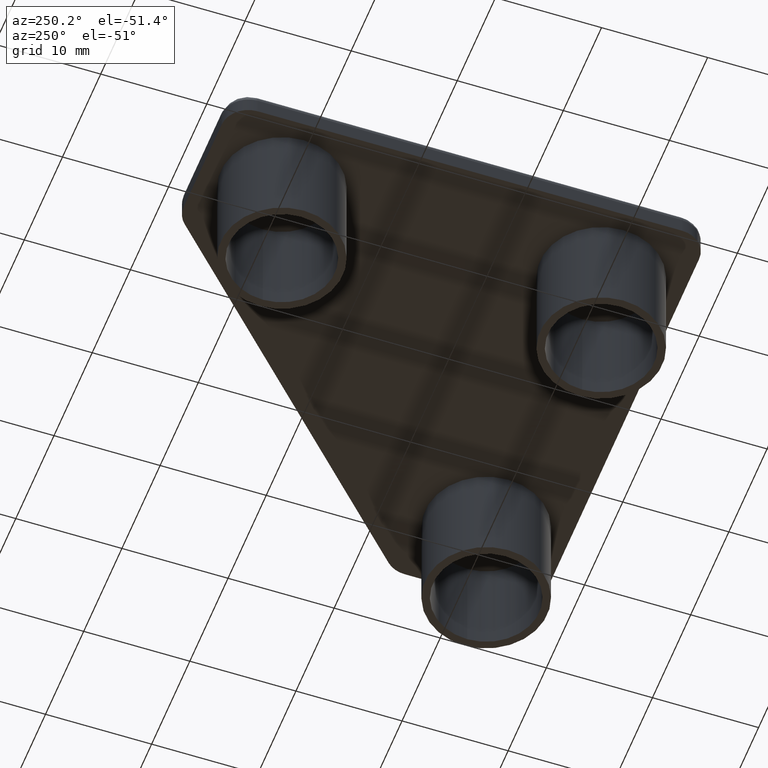
[diagram: clean part render]
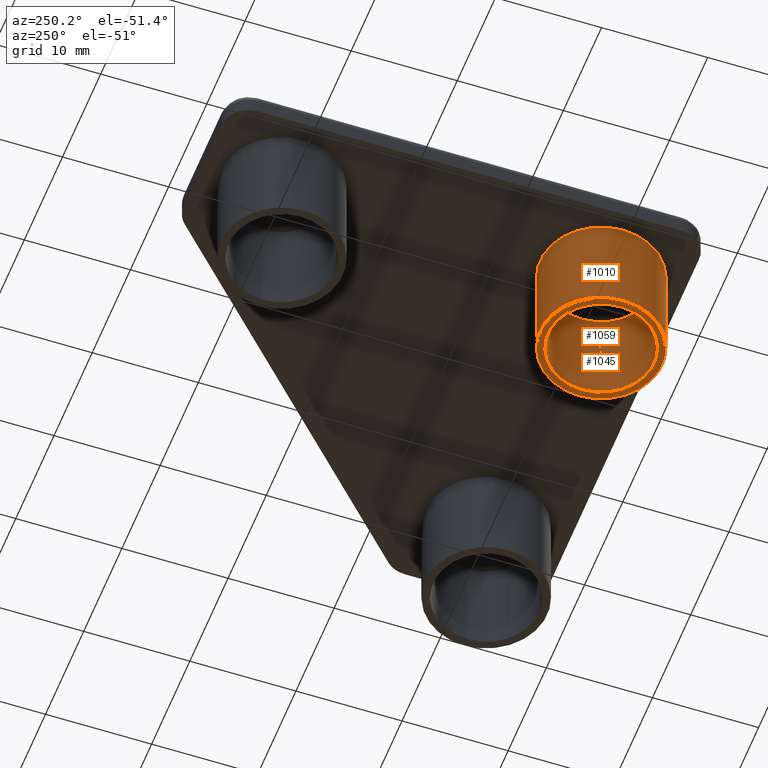
[diagram: same view with one multi-face feature highlighted, each face labeled with its STEP entity id]
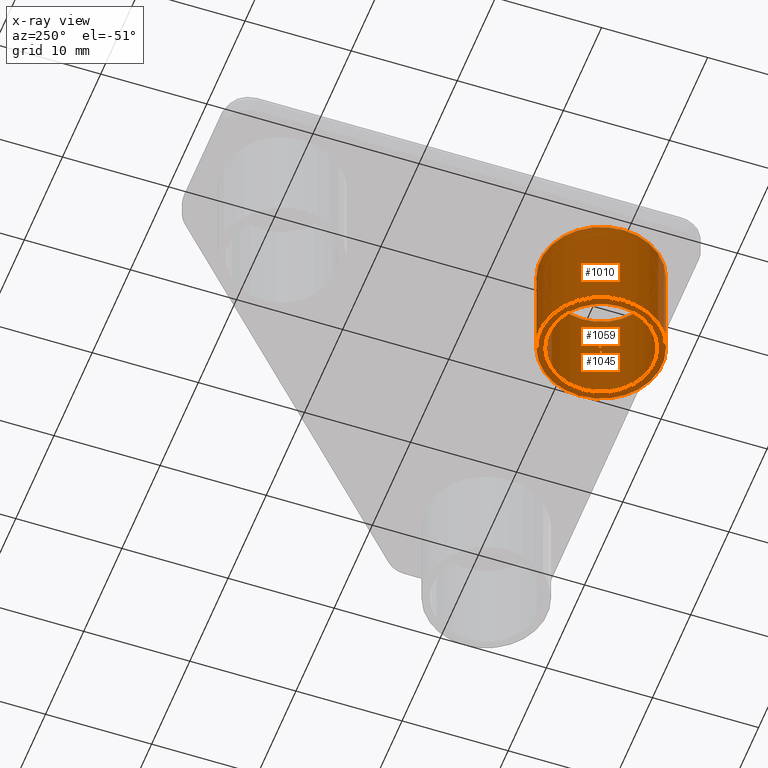
[diagram: x-ray of the same camera — body ghosted, the whole feature saturated]
A machine part, auxiliary view. The highlighted faces form ONE feature: a stepped (counterbored) hole: 2 coaxial cylindrical walls of radii 5 -> 5.75 mm joined by 1 annular planar shoulder face(s). The faces share edges in the B-rep.
The next image is the same camera in x-ray: the body ghosted and the whole hole feature saturated, so the bore chain is visible through the body.
Their STEP definitions:
[1] entity #1010 (Cylinder):
#94=CARTESIAN_POINT('',(-20.799977796792124,7.449955999970369,0.0));
#95=VERTEX_POINT('',#94);
#96=CARTESIAN_POINT('',(-9.299977796838125,7.449955999970369,0.0));
#97=VERTEX_POINT('',#96);
#98=CARTESIAN_POINT('',(-15.049977796815124,7.449955999970369,0.0));
#99=DIRECTION('',(0.0,0.0,-1.0));
#100=DIRECTION('',(1.0,0.0,0.0));
#101=AXIS2_PLACEMENT_3D('',#98,#99,#100);
#102=CIRCLE('',#101,5.749999999977001);
#103=EDGE_CURVE('',#95,#97,#102,.T.);
#105=CARTESIAN_POINT('',(-15.049977796815124,7.449955999970369,0.0));
#106=DIRECTION('',(0.0,0.0,-1.0));
#107=DIRECTION('',(1.0,0.0,0.0));
#108=AXIS2_PLACEMENT_3D('',#105,#106,#107);
#109=CIRCLE('',#108,5.749999999977001);
#110=EDGE_CURVE('',#97,#95,#109,.T.);
#976=CARTESIAN_POINT('',(-15.049977796815124,7.449955999970369,0.0));
#977=DIRECTION('',(0.0,0.0,-1.0));
#978=DIRECTION('',(1.0,0.0,0.0));
#979=AXIS2_PLACEMENT_3D('',#976,#977,#978);
#980=CYLINDRICAL_SURFACE('',#979,5.749999999977001);
#981=CARTESIAN_POINT('',(-20.799977796792124,7.449955999970369,-9.999999999959982));
#982=VERTEX_POINT('',#981);
#983=CARTESIAN_POINT('',(-9.299977796838125,7.449955999970369,-9.999999999959982));
#984=VERTEX_POINT('',#983);
#985=CARTESIAN_POINT('',(-15.049977796815124,7.449955999970369,-9.999999999959982));
#986=DIRECTION('',(0.0,0.0,-1.0));
#987=DIRECTION('',(1.0,0.0,0.0));
#988=AXIS2_PLACEMENT_3D('',#985,#986,#987);
#989=CIRCLE('',#988,5.749999999977001);
#990=EDGE_CURVE('',#982,#984,#989,.T.);
#991=ORIENTED_EDGE('',*,*,#990,.F.);
#992=CARTESIAN_POINT('',(-15.049977796815124,7.449955999970369,-9.999999999959982));
#993=DIRECTION('',(0.0,0.0,-1.0));
#994=DIRECTION('',(1.0,0.0,0.0));
#995=AXIS2_PLACEMENT_3D('',#992,#993,#994);
#996=CIRCLE('',#995,5.749999999977001);
#997=EDGE_CURVE('',#984,#982,#996,.T.);
#998=ORIENTED_EDGE('',*,*,#997,.F.);
#999=CARTESIAN_POINT('',(-9.299977796838125,7.449955999970369,0.0));
#1000=DIRECTION('',(0.0,0.0,-1.0));
#1001=VECTOR('',#1000,9.999999999959982);
#1002=LINE('',#999,#1001);
#1003=EDGE_CURVE('',#97,#984,#1002,.T.);
#1004=ORIENTED_EDGE('',*,*,#1003,.F.);
#1005=ORIENTED_EDGE('',*,*,#110,.T.);
#1006=ORIENTED_EDGE('',*,*,#103,.T.);
#1007=ORIENTED_EDGE('',*,*,#1003,.T.);
#1008=EDGE_LOOP('',(#991,#998,#1004,#1005,#1006,#1007));
#1009=FACE_OUTER_BOUND('',#1008,.T.);
#1010=ADVANCED_FACE('',(#1009),#980,.T.);
[2] entity #1045 (Cylinder):
#212=CARTESIAN_POINT('',(-20.049977796795126,7.449955999970369,0.0));
#213=VERTEX_POINT('',#212);
#214=CARTESIAN_POINT('',(-10.049977796835122,7.449955999970370,0.0));
#215=VERTEX_POINT('',#214);
#216=CARTESIAN_POINT('',(-15.049977796815124,7.449955999970369,0.0));
#217=DIRECTION('',(0.0,0.0,1.0));
#218=DIRECTION('',(1.0,0.0,0.0));
#219=AXIS2_PLACEMENT_3D('',#216,#217,#218);
#220=CIRCLE('',#219,4.999999999980001);
#221=EDGE_CURVE('',#213,#215,#220,.T.);
#223=CARTESIAN_POINT('',(-15.049977796815124,7.449955999970369,0.0));
#224=DIRECTION('',(0.0,0.0,1.0));
#225=DIRECTION('',(1.0,0.0,0.0));
#226=AXIS2_PLACEMENT_3D('',#223,#224,#225);
#227=CIRCLE('',#226,4.999999999980001);
#228=EDGE_CURVE('',#215,#213,#227,.T.);
#1011=CARTESIAN_POINT('',(-15.049977796815124,7.449955999970369,0.0));
#1012=DIRECTION('',(0.0,0.0,1.0));
#1013=DIRECTION('',(1.0,2.449294E-016,0.0));
#1014=AXIS2_PLACEMENT_3D('',#1011,#1012,#1013);
#1015=CYLINDRICAL_SURFACE('',#1014,4.999999999980001);
#1016=CARTESIAN_POINT('',(-20.049977796795126,7.449955999970369,-9.999999999959982));
#1017=VERTEX_POINT('',#1016);
#1018=CARTESIAN_POINT('',(-10.049977796835122,7.449955999970370,-9.999999999959982));
#1019=VERTEX_POINT('',#1018);
#1020=CARTESIAN_POINT('',(-15.049977796815124,7.449955999970369,-9.999999999959982));
#1021=DIRECTION('',(0.0,0.0,1.0));
#1022=DIRECTION('',(1.0,0.0,0.0));
#1023=AXIS2_PLACEMENT_3D('',#1020,#1021,#1022);
#1024=CIRCLE('',#1023,4.999999999980001);
#1025=EDGE_CURVE('',#1017,#1019,#1024,.T.);
#1026=ORIENTED_EDGE('',*,*,#1025,.F.);
#1027=CARTESIAN_POINT('',(-15.049977796815124,7.449955999970369,-9.999999999959982));
#1028=DIRECTION('',(0.0,0.0,1.0));
#1029=DIRECTION('',(1.0,0.0,0.0));
#1030=AXIS2_PLACEMENT_3D('',#1027,#1028,#1029);
#1031=CIRCLE('',#1030,4.999999999980001);
#1032=EDGE_CURVE('',#1019,#1017,#1031,.T.);
#1033=ORIENTED_EDGE('',*,*,#1032,.F.);
#1034=CARTESIAN_POINT('',(-10.049977796835122,7.449955999970370,0.0));
#1035=DIRECTION('',(0.0,0.0,-1.0));
#1036=VECTOR('',#1035,9.999999999959982);
#1037=LINE('',#1034,#1036);
#1038=EDGE_CURVE('',#215,#1019,#1037,.T.);
#1039=ORIENTED_EDGE('',*,*,#1038,.F.);
#1040=ORIENTED_EDGE('',*,*,#228,.T.);
#1041=ORIENTED_EDGE('',*,*,#221,.T.);
#1042=ORIENTED_EDGE('',*,*,#1038,.T.);
#1043=EDGE_LOOP('',(#1026,#1033,#1039,#1040,#1041,#1042));
#1044=FACE_OUTER_BOUND('',#1043,.T.);
#1045=ADVANCED_FACE('',(#1044),#1015,.F.);
[3] entity #1059 (Plane):
#981=CARTESIAN_POINT('',(-20.799977796792124,7.449955999970369,-9.999999999959982));
#982=VERTEX_POINT('',#981);
#983=CARTESIAN_POINT('',(-9.299977796838125,7.449955999970369,-9.999999999959982));
#984=VERTEX_POINT('',#983);
#985=CARTESIAN_POINT('',(-15.049977796815124,7.449955999970369,-9.999999999959982));
#986=DIRECTION('',(0.0,0.0,-1.0));
#987=DIRECTION('',(1.0,0.0,0.0));
#988=AXIS2_PLACEMENT_3D('',#985,#986,#987);
#989=CIRCLE('',#988,5.749999999977001);
#990=EDGE_CURVE('',#982,#984,#989,.T.);
#992=CARTESIAN_POINT('',(-15.049977796815124,7.449955999970369,-9.999999999959982));
#993=DIRECTION('',(0.0,0.0,-1.0));
#994=DIRECTION('',(1.0,0.0,0.0));
#995=AXIS2_PLACEMENT_3D('',#992,#993,#994);
#996=CIRCLE('',#995,5.749999999977001);
#997=EDGE_CURVE('',#984,#982,#996,.T.);
#1016=CARTESIAN_POINT('',(-20.049977796795126,7.449955999970369,-9.999999999959982));
#1017=VERTEX_POINT('',#1016);
#1018=CARTESIAN_POINT('',(-10.049977796835122,7.449955999970370,-9.999999999959982));
#1019=VERTEX_POINT('',#1018);
#1020=CARTESIAN_POINT('',(-15.049977796815124,7.449955999970369,-9.999999999959982));
#1021=DIRECTION('',(0.0,0.0,1.0));
#1022=DIRECTION('',(1.0,0.0,0.0));
#1023=AXIS2_PLACEMENT_3D('',#1020,#1021,#1022);
#1024=CIRCLE('',#1023,4.999999999980001);
#1025=EDGE_CURVE('',#1017,#1019,#1024,.T.);
#1027=CARTESIAN_POINT('',(-15.049977796815124,7.449955999970369,-9.999999999959982));
#1028=DIRECTION('',(0.0,0.0,1.0));
#1029=DIRECTION('',(1.0,0.0,0.0));
#1030=AXIS2_PLACEMENT_3D('',#1027,#1028,#1029);
#1031=CIRCLE('',#1030,4.999999999980001);
#1032=EDGE_CURVE('',#1019,#1017,#1031,.T.);
#1046=CARTESIAN_POINT('',(-21.949982521255130,14.349960724410375,-9.999999999959982));
#1047=DIRECTION('',(0.0,0.0,-1.0));
#1048=DIRECTION('',(1.0,0.0,0.0));
#1049=AXIS2_PLACEMENT_3D('',#1046,#1047,#1048);
#1050=PLANE('',#1049);
#1051=ORIENTED_EDGE('',*,*,#997,.T.);
#1052=ORIENTED_EDGE('',*,*,#990,.T.);
#1053=EDGE_LOOP('',(#1051,#1052));
#1054=FACE_OUTER_BOUND('',#1053,.T.);
#1055=ORIENTED_EDGE('',*,*,#1032,.T.);
#1056=ORIENTED_EDGE('',*,*,#1025,.T.);
#1057=EDGE_LOOP('',(#1055,#1056));
#1058=FACE_BOUND('',#1057,.T.);
#1059=ADVANCED_FACE('',(#1054,#1058),#1050,.T.);